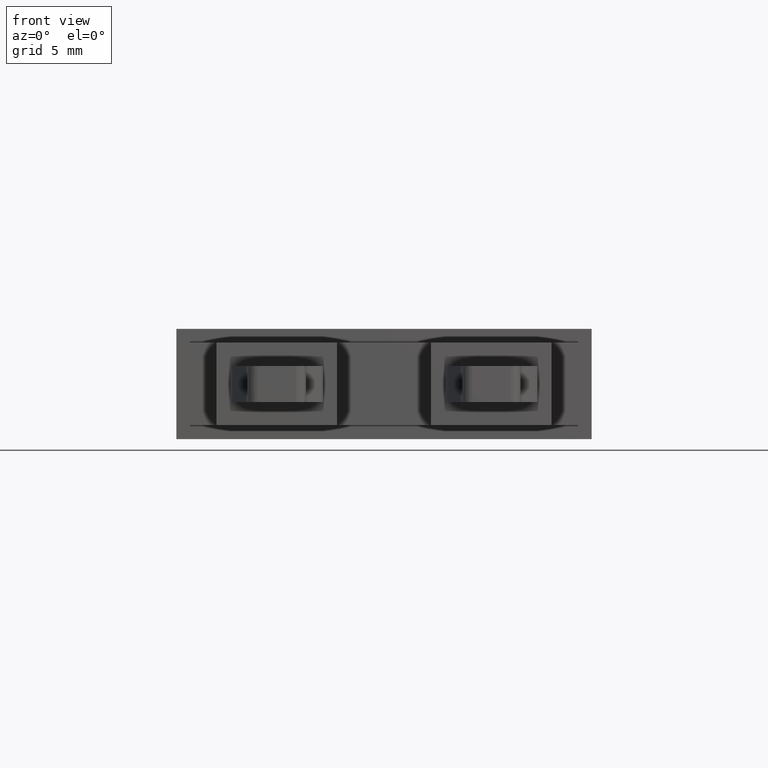
[diagram: clean part render]
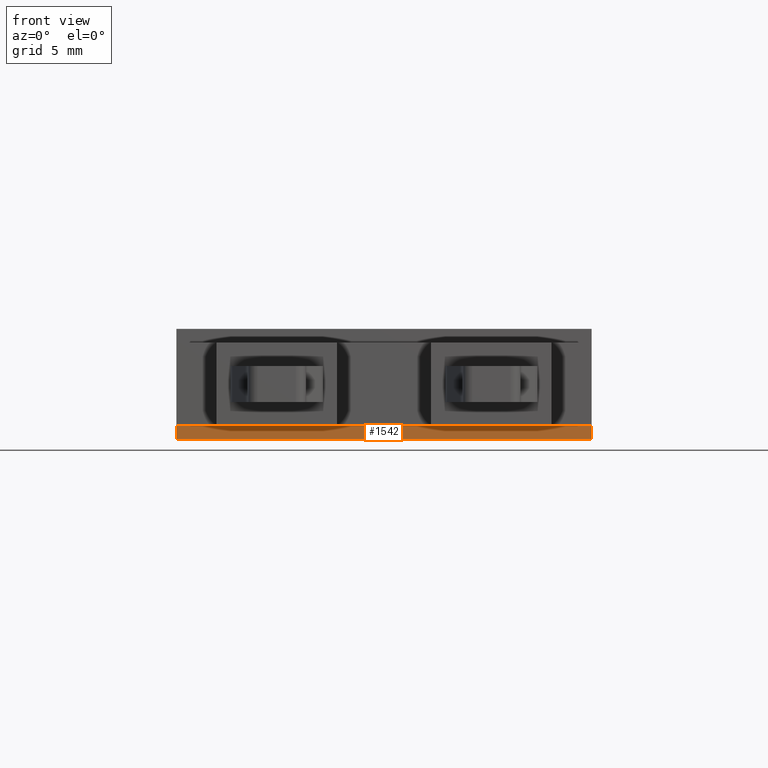
[diagram: same view with one face highlighted and labeled with its STEP entity id]
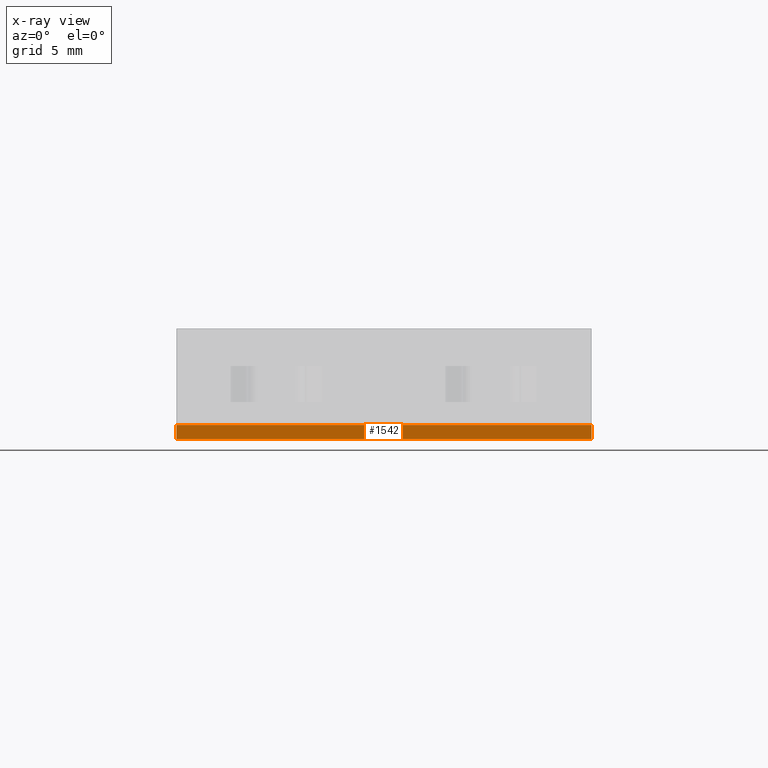
[diagram: x-ray of the same camera — body ghosted, the highlighted face saturated]
A machine part, front view. The second image highlights one B-rep face of the part: STEP entity #1542.
The next image is the same camera in x-ray: the body ghosted, the highlighted face saturated — about 0% of this face is hidden behind the body in this view.
In plain terms, the highlighted planar face has unit normal (-0, 1, 0).
Its self-contained STEP definition (entity closure, byte-faithful):
#122 = LINE ( 'NONE', #134, #1252 ) ;
#134 = CARTESIAN_POINT ( 'NONE',  ( 18.69999999999999600, 2.700000000000002800, 0.0000000000000000000 ) ) ;
#140 = LINE ( 'NONE', #158, #1250 ) ;
#152 = DIRECTION ( 'NONE',  ( -1.000000000000000000, -2.775557561562890400E-016, 0.0000000000000000000 ) ) ;
#158 = CARTESIAN_POINT ( 'NONE',  ( 20.69999999999999600, 2.700000000000003300, -0.6999999999999999600 ) ) ;
#180 = DIRECTION ( 'NONE',  ( -1.000000000000000000, -2.775557561562890400E-016, 0.0000000000000000000 ) ) ;
#212 = LINE ( 'NONE', #257, #1261 ) ;
#225 = CARTESIAN_POINT ( 'NONE',  ( 0.0000000000000000000, 2.699999999999997500, -0.8000000000000000400 ) ) ;
#242 = DIRECTION ( 'NONE',  ( 0.0000000000000000000, 0.0000000000000000000, -1.000000000000000000 ) ) ;
#245 = DIRECTION ( 'NONE',  ( 0.0000000000000000000, 0.0000000000000000000, -1.000000000000000000 ) ) ;
#257 = CARTESIAN_POINT ( 'NONE',  ( 20.69999999999999200, 2.700000000000002800, -0.8000000000000000400 ) ) ;
#259 = LINE ( 'NONE', #225, #1281 ) ;
#372 = PLANE ( 'NONE',  #1364 ) ;
#385 = CARTESIAN_POINT ( 'NONE',  ( 20.69999999999999600, 2.700000000000003300, -0.8000000000000000400 ) ) ;
#391 = FACE_OUTER_BOUND ( 'NONE', #581, .T. ) ;
#392 = DIRECTION ( 'NONE',  ( -2.775557561562890400E-016, 1.000000000000000000, 0.0000000000000000000 ) ) ;
#410 = DIRECTION ( 'NONE',  ( -1.000000000000000000, -2.775557561562890400E-016, 0.0000000000000000000 ) ) ;
#436 = VERTEX_POINT ( 'NONE', #852 ) ;
#457 = VERTEX_POINT ( 'NONE', #843 ) ;
#462 = VERTEX_POINT ( 'NONE', #869 ) ;
#494 = VERTEX_POINT ( 'NONE', #919 ) ;
#581 = EDGE_LOOP ( 'NONE', ( #752, #804, #702, #699 ) ) ;
#699 = ORIENTED_EDGE ( 'NONE', *, *, #1482, .T. ) ;
#702 = ORIENTED_EDGE ( 'NONE', *, *, #1498, .F. ) ;
#752 = ORIENTED_EDGE ( 'NONE', *, *, #1501, .T. ) ;
#804 = ORIENTED_EDGE ( 'NONE', *, *, #1477, .F. ) ;
#843 = CARTESIAN_POINT ( 'NONE',  ( -1.108295554096292100E-016, 2.699999999999997500, -0.6999999999999999600 ) ) ;
#852 = CARTESIAN_POINT ( 'NONE',  ( 20.69999999999999200, 2.700000000000002800, -0.6999999999999999600 ) ) ;
#869 = CARTESIAN_POINT ( 'NONE',  ( 0.0000000000000000000, 2.699999999999997500, 0.0000000000000000000 ) ) ;
#919 = CARTESIAN_POINT ( 'NONE',  ( 20.69999999999999600, 2.700000000000003300, 0.0000000000000000000 ) ) ;
#1250 = VECTOR ( 'NONE', #152, 1000.000000000000000 ) ;
#1252 = VECTOR ( 'NONE', #180, 1000.000000000000000 ) ;
#1261 = VECTOR ( 'NONE', #242, 1000.000000000000000 ) ;
#1281 = VECTOR ( 'NONE', #245, 1000.000000000000000 ) ;
#1364 = AXIS2_PLACEMENT_3D ( 'NONE', #385, #392, #410 ) ;
#1477 = EDGE_CURVE ( 'NONE', #436, #457, #140, .T. ) ;
#1482 = EDGE_CURVE ( 'NONE', #494, #462, #122, .T. ) ;
#1498 = EDGE_CURVE ( 'NONE', #494, #436, #212, .T. ) ;
#1501 = EDGE_CURVE ( 'NONE', #462, #457, #259, .T. ) ;
#1542 = ADVANCED_FACE ( 'NONE', ( #391 ), #372, .F. ) ;